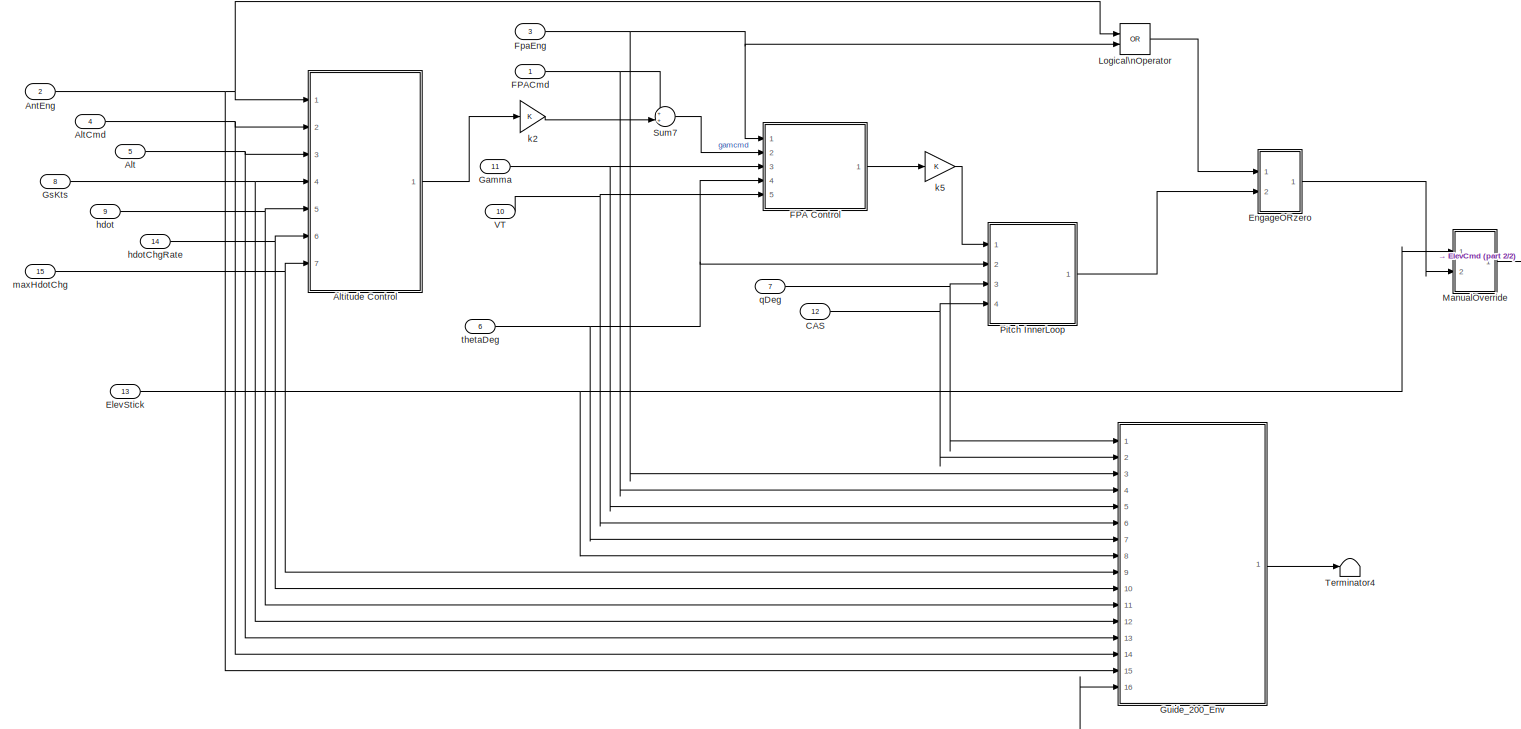
[diagram: root canvas - part 1/2, most of the canvas]
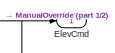
[diagram: root canvas - part 2/2, middle right region]
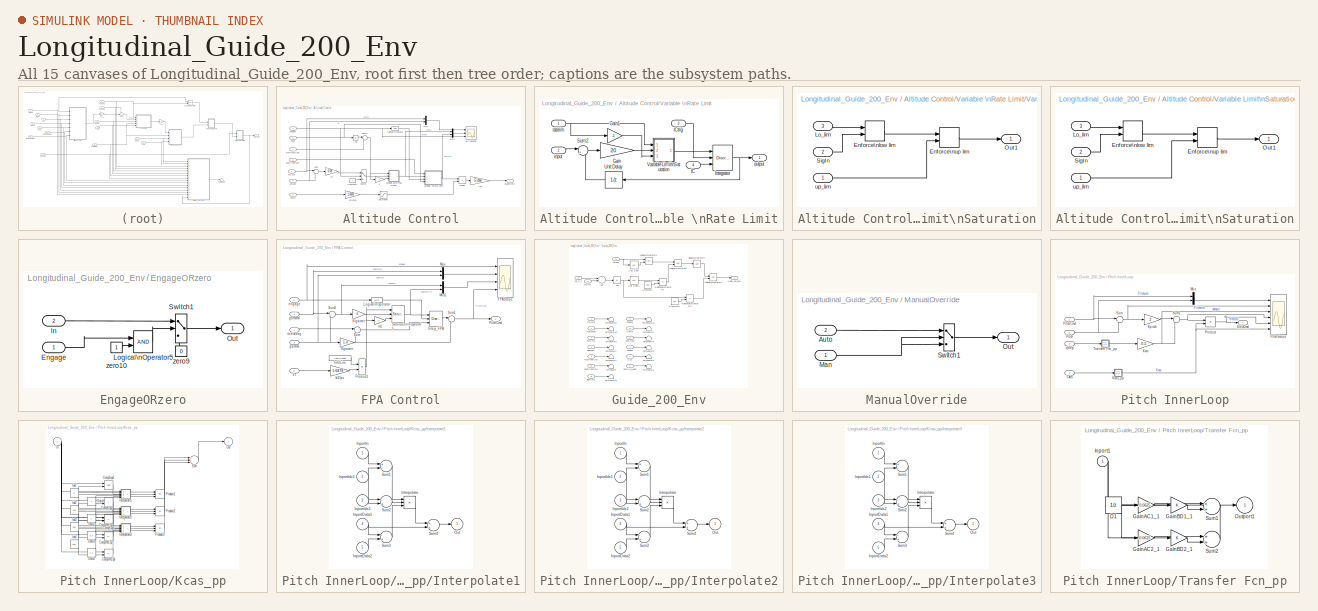
[diagram: thumbnail index - all 15 canvases of the model, root first then tree order]
MODEL Longitudinal_Guide_200_Env
KIND model
BLOCK [Inport] Alt
  IconDisplay = Port number
  OutDataTypeStr = double
  Port = 5
  SID = 5
BLOCK [Inport] AltCmd
  IconDisplay = Port number
  OutDataTypeStr = double
  Port = 4
  SID = 4
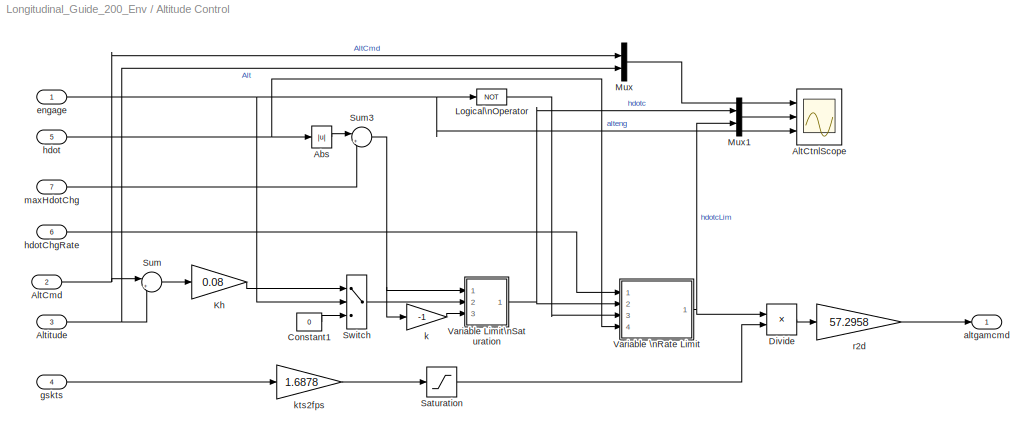
BLOCK [SubSystem] Altitude Control
  Ports = [7, 1]
  RequestExecContextInheritance = off
  SID = 16
  TreatAsAtomicUnit = on
  Variant = off
BLOCK [Abs] Altitude Control/Abs
  SID = 24
BLOCK [Inport] Altitude Control/AltCmd
  IconDisplay = Port number
  Port = 2
  SID = 18
BLOCK [Scope] Altitude Control/AltCtnlScope
  NumInputPorts = 3
  Ports = [3]
  SID = 25
  ScopeSpecificationString = C++SS(StrPVP('Location','[888, 71, 1614, 502]'),StrPVP('Open','off'),MxPVP('AxesTitles',24,'struct(''axes1'',''AltCmd,  Altitude'',''axes2'',''hdotc,  hdotcLim'',''axes3'',''%<SignalLabel>'')'),StrPVP('ShowLegends','off'),StrPVP('TimeRange','30'),StrPVP('YMin','10000~-5~0'),StrPVP('YMax','10200~15~1'),StrPVP('SaveName','ScopeData3'),StrPVP('DataFormat','StructureWithTime'),StrPVP('LimitDataPoints'...<+133ch>
BLOCK [Inport] Altitude Control/Altitude
  IconDisplay = Port number
  Port = 3
  SID = 19
BLOCK [Constant] Altitude Control/Constant1
  SID = 26
  Value = 0
BLOCK [Product] Altitude Control/Divide
  InputSameDT = off
  Inputs = */
  OutDataTypeStr = Inherit: Inherit via internal rule
  Ports = [2, 1]
  RndMeth = Floor
  SID = 27
  SaturateOnIntegerOverflow = off
BLOCK [Gain] Altitude Control/Kh
  Gain = 0.08
  OutDataTypeStr = Inherit: Inherit via internal rule
  ParamDataTypeStr = Inherit: Inherit via internal rule
  SID = 28
  SaturateOnIntegerOverflow = off
BLOCK [Logic] Altitude Control/Logical\nOperator
  Operator = NOT
  Ports = [1, 1]
  SID = 29
BLOCK [Mux] Altitude Control/Mux
  DisplayOption = bar
  Inputs = 2
  Ports = [2, 1]
  SID = 30
BLOCK [Mux] Altitude Control/Mux1
  DisplayOption = bar
  Inputs = 2
  Ports = [2, 1]
  SID = 31
BLOCK [Saturate] Altitude Control/Saturation
  InputPortMap = u0
  LowerLimit = 0.0001
  Ports = [1, 1]
  SID = 32
  UpperLimit = 1000
BLOCK [Sum] Altitude Control/Sum
  IconShape = round
  InputSameDT = off
  Inputs = |+-
  OutDataTypeStr = Inherit: Inherit via internal rule
  Ports = [2, 1]
  SID = 33
  SaturateOnIntegerOverflow = off
BLOCK [Sum] Altitude Control/Sum3
  IconShape = round
  Inputs = |++
  Ports = [2, 1]
  SID = 34
BLOCK [Switch] Altitude Control/Switch
  InputSameDT = off
  SID = 35
  SaturateOnIntegerOverflow = off
BLOCK [SubSystem] Altitude Control/Variable Limit\nSaturation
  Ports = [3, 1]
  RequestExecContextInheritance = off
  SID = 53
  TreatAsAtomicUnit = on
  Variant = off
BLOCK [MinMax] Altitude Control/Variable Limit\nSaturation/Enforce\nlow lim
  Function = max
  InputSameDT = off
  Inputs = 2
  Ports = [2, 1]
  SID = 57
  SaturateOnIntegerOverflow = off
BLOCK [MinMax] Altitude Control/Variable Limit\nSaturation/Enforce\nup lim
  InputSameDT = off
  Inputs = 2
  Ports = [2, 1]
  SID = 58
  SaturateOnIntegerOverflow = off
BLOCK [Inport] Altitude Control/Variable Limit\nSaturation/Lo_lim
  IconDisplay = Port number
  Port = 3
  SID = 56
BLOCK [Outport] Altitude Control/Variable Limit\nSaturation/Out1
  IconDisplay = Port number
  SID = 59
BLOCK [Inport] Altitude Control/Variable Limit\nSaturation/SigIn
  IconDisplay = Port number
  Port = 2
  SID = 55
BLOCK [Inport] Altitude Control/Variable Limit\nSaturation/up_lim
  IconDisplay = Port number
  SID = 54
BLOCK [SubSystem] Altitude Control/Variable \nRate Limit
  Ports = [4, 1]
  RequestExecContextInheritance = off
  SID = 36
  TreatAsAtomicUnit = on
  Variant = off
BLOCK [Gain] Altitude Control/Variable \nRate Limit/Gain
  Gain = 20
  SID = 41
BLOCK [Gain] Altitude Control/Variable \nRate Limit/Gain1
  Gain = -1
  SID = 42
BLOCK [Inport] Altitude Control/Variable \nRate Limit/IC
  IconDisplay = Port number
  Port = 4
  SID = 40
BLOCK [Inport] Altitude Control/Variable \nRate Limit/ICtrig
  IconDisplay = Port number
  Port = 3
  SID = 39
BLOCK [DiscreteIntegrator] Altitude Control/Variable \nRate Limit/Integrator
  ExternalReset = level
  ICPrevOutput = DiscIntNeverNeededParam
  ICPrevScaledInput = DiscIntNeverNeededParam
  InitialConditionSource = external
  Ports = [3, 1]
  SID = 43
  SampleTime = 1.0
BLOCK [Sum] Altitude Control/Variable \nRate Limit/Sum2
  IconShape = round
  InputSameDT = off
  Inputs = |+-
  OutDataTypeStr = Inherit: Inherit via internal rule
  Ports = [2, 1]
  SID = 44
BLOCK [UnitDelay] Altitude Control/Variable \nRate Limit/Unit Delay
  InputProcessing = Elements as channels (sample based)
  SID = 303
  SampleTime = -1
BLOCK [SubSystem] Altitude Control/Variable \nRate Limit/Variable Limit\nSaturation
  Ports = [3, 1]
  RequestExecContextInheritance = off
  SID = 45
  Variant = off
BLOCK [MinMax] Altitude Control/Variable \nRate Limit/Variable Limit\nSaturation/Enforce\nlow lim
  Function = max
  InputSameDT = off
  Inputs = 2
  Ports = [2, 1]
  SID = 49
  SaturateOnIntegerOverflow = off
BLOCK [MinMax] Altitude Control/Variable \nRate Limit/Variable Limit\nSaturation/Enforce\nup lim
  InputSameDT = off
  Inputs = 2
  Ports = [2, 1]
  SID = 50
  SaturateOnIntegerOverflow = off
BLOCK [Inport] Altitude Control/Variable \nRate Limit/Variable Limit\nSaturation/Lo_lim
  IconDisplay = Port number
  Port = 3
  SID = 48
BLOCK [Outport] Altitude Control/Variable \nRate Limit/Variable Limit\nSaturation/Out1
  IconDisplay = Port number
  SID = 51
BLOCK [Inport] Altitude Control/Variable \nRate Limit/Variable Limit\nSaturation/SigIn
  IconDisplay = Port number
  Port = 2
  SID = 47
BLOCK [Inport] Altitude Control/Variable \nRate Limit/Variable Limit\nSaturation/up_lim
  IconDisplay = Port number
  SID = 46
BLOCK [Inport] Altitude Control/Variable \nRate Limit/input
  IconDisplay = Port number
  Port = 2
  SID = 38
BLOCK [Outport] Altitude Control/Variable \nRate Limit/output
  IconDisplay = Port number
  SID = 52
BLOCK [Inport] Altitude Control/Variable \nRate Limit/ratelim
  IconDisplay = Port number
  SID = 37
BLOCK [Outport] Altitude Control/altgamcmd
  IconDisplay = Port number
  SID = 63
BLOCK [Inport] Altitude Control/engage
  IconDisplay = Port number
  SID = 17
BLOCK [Inport] Altitude Control/gskts
  IconDisplay = Port number
  Port = 4
  SID = 20
BLOCK [Inport] Altitude Control/hdot
  IconDisplay = Port number
  Port = 5
  SID = 21
BLOCK [Inport] Altitude Control/hdotChgRate
  IconDisplay = Port number
  Port = 6
  SID = 22
BLOCK [Gain] Altitude Control/k
  Gain = -1
  OutDataTypeStr = Inherit: Inherit via internal rule
  ParamDataTypeStr = Inherit: Inherit via internal rule
  SID = 60
  SaturateOnIntegerOverflow = off
BLOCK [Gain] Altitude Control/kts2fps
  Gain = 1.6878
  OutDataTypeStr = Inherit: Inherit via internal rule
  ParamDataTypeStr = Inherit: Inherit via internal rule
  SID = 61
  SaturateOnIntegerOverflow = off
BLOCK [Inport] Altitude Control/maxHdotChg
  IconDisplay = Port number
  Port = 7
  SID = 23
BLOCK [Gain] Altitude Control/r2d
  Gain = 57.2958
  OutDataTypeStr = Inherit: Inherit via internal rule
  ParamDataTypeStr = Inherit: Inherit via internal rule
  SID = 62
  SaturateOnIntegerOverflow = off
BLOCK [Inport] AntEng
  IconDisplay = Port number
  OutDataTypeStr = boolean
  Port = 2
  SID = 2
BLOCK [Inport] CAS
  IconDisplay = Port number
  OutDataTypeStr = double
  Port = 12
  SID = 12
BLOCK [Outport] ElevCmd
  IconDisplay = Port number
  SID = 222
BLOCK [Inport] ElevStick
  IconDisplay = Port number
  OutDataTypeStr = double
  Port = 13
  SID = 13
BLOCK [SubSystem] EngageORzero
  Ports = [2, 1]
  RequestExecContextInheritance = off
  SID = 64
  Variant = off
BLOCK [Inport] EngageORzero/Engage
  IconDisplay = Port number
  SID = 65
BLOCK [Inport] EngageORzero/In
  IconDisplay = Port number
  Port = 2
  SID = 66
BLOCK [Logic] EngageORzero/Logical\nOperator5
  AllPortsSameDT = off
  OutDataTypeStr = boolean
  Ports = [2, 1]
  SID = 67
BLOCK [Outport] EngageORzero/Out
  IconDisplay = Port number
  SID = 71
BLOCK [Switch] EngageORzero/Switch1
  InputSameDT = off
  SID = 68
  SaturateOnIntegerOverflow = off
  Threshold = 0.5
BLOCK [Constant] EngageORzero/zero10
  SID = 69
BLOCK [Constant] EngageORzero/zero9
  SID = 70
  Value = 0
BLOCK [SubSystem] FPA Control
  Ports = [5, 1]
  RequestExecContextInheritance = off
  SID = 72
  TreatAsAtomicUnit = on
  Variant = off
BLOCK [Scope] FPA Control/FPAScope
  NumInputPorts = 4
  Ports = [4]
  SID = 78
  ScopeSpecificationString = C++SS(StrPVP('Location','[747, 82, 1479, 770]'),StrPVP('Open','off'),MxPVP('AxesTitles',24,'struct(''axes1'',''%<SignalLabel>'',''axes2'',''FPAcmd,  FPA'',''axes3'',''%<SignalLabel>'',''axes4'',''%<SignalLabel>'')'),StrPVP('ShowLegends','off'),StrPVP('YMin','-1~-5~-2~-5'),StrPVP('YMax','2~5~2~10'),StrPVP('SaveName','ScopeData12'),StrPVP('DataFormat','StructureWithTime'),StrPVP('LimitDataPoints','o...<+130ch>
BLOCK [DiscreteIntegrator] FPA Control/Integ_FPA
  ExternalReset = level
  ICPrevOutput = DiscIntNeverNeededParam
  ICPrevScaledInput = DiscIntNeverNeededParam
  InitialConditionSource = external
  Ports = [3, 1]
  SID = 79
  SampleTime = 1.0
BLOCK [Gain] FPA Control/KIgamerr
  OutDataTypeStr = Inherit: Inherit via internal rule
  ParamDataTypeStr = Inherit: Inherit via internal rule
  SID = 80
  SaturateOnIntegerOverflow = off
BLOCK [Gain] FPA Control/Kgamerr
  Gain = 1.4
  OutDataTypeStr = Inherit: Inherit via internal rule
  ParamDataTypeStr = Inherit: Inherit via internal rule
  SID = 81
  SaturateOnIntegerOverflow = off
BLOCK [Logic] FPA Control/Logical\nOperator
  AllPortsSameDT = off
  Operator = NOT
  OutDataTypeStr = boolean
  Ports = [1, 1]
  SID = 82
BLOCK [Mux] FPA Control/Mux
  DisplayOption = bar
  Inputs = 2
  Ports = [2, 1]
  SID = 83
BLOCK [Mux] FPA Control/Mux1
  DisplayOption = bar
  Inputs = 2
  Ports = [2, 1]
  SID = 84
BLOCK [Outport] FPA Control/PitchCmd
  IconDisplay = Port number
  SID = 93
BLOCK [Product] FPA Control/Product1
  InputSameDT = off
  OutDataTypeStr = Inherit: Inherit via internal rule
  Ports = [2, 1]
  SID = 85
  SaturateOnIntegerOverflow = off
BLOCK [Reference] FPA Control/Saturation\nDynamic  REF=simulink/Discontinuities/Saturation\nDynamic
  DoSatur = off
  LockScale = off
  OutDataType = fixdt(1, 16)
  OutDataTypeStr = Inherit: Same as second input
  OutMax = []
  OutMin = []
  OutScaling = 2^-10
  OutputDataTypeScalingMode = Same as second input
  Ports = [3, 1]
  RndMeth = Floor
  SID = 86
  SourceBlock = simulink/Discontinuities/Saturation\nDynamic
  SourceType = Saturation Dynamic
BLOCK [Sum] FPA Control/Sum
  IconShape = round
  InputSameDT = off
  Inputs = |++
  OutDataTypeStr = Inherit: Inherit via internal rule
  Ports = [2, 1]
  SID = 87
  SaturateOnIntegerOverflow = off
BLOCK [Sum] FPA Control/Sum1
  IconShape = round
  InputSameDT = off
  Inputs = |+-
  OutDataTypeStr = Inherit: Inherit via internal rule
  Ports = [2, 1]
  SID = 88
  SaturateOnIntegerOverflow = off
BLOCK [Sum] FPA Control/Sum2
  IconShape = round
  InputSameDT = off
  Inputs = |+-
  OutDataTypeStr = Inherit: Inherit via internal rule
  Ports = [2, 1]
  SID = 89
  SaturateOnIntegerOverflow = off
BLOCK [Inport] FPA Control/VT
  IconDisplay = Port number
  Port = 5
  SID = 77
BLOCK [Inport] FPA Control/engage
  IconDisplay = Port number
  SID = 73
BLOCK [Inport] FPA Control/gamcmd
  IconDisplay = Port number
  Port = 2
  SID = 74
BLOCK [Inport] FPA Control/gamma
  IconDisplay = Port number
  Port = 3
  SID = 75
BLOCK [Constant] FPA Control/hddLim
  SID = 90
  Value = 4.83*57.2958
BLOCK [Gain] FPA Control/kt2fps
  Gain = 1.6878
  OutDataTypeStr = Inherit: Inherit via internal rule
  ParamDataTypeStr = Inherit: Inherit via internal rule
  SID = 91
  SaturateOnIntegerOverflow = off
BLOCK [Gain] FPA Control/m1
  Gain = -1
  OutDataTypeStr = Inherit: Inherit via internal rule
  ParamDataTypeStr = Inherit: Inherit via internal rule
  SID = 92
  SaturateOnIntegerOverflow = off
BLOCK [Inport] FPA Control/thetadeg
  IconDisplay = Port number
  Port = 4
  SID = 76
BLOCK [Inport] FPACmd
  IconDisplay = Port number
  OutDataTypeStr = double
  SID = 1
BLOCK [Inport] FpaEng
  IconDisplay = Port number
  OutDataTypeStr = boolean
  Port = 3
  SID = 3
BLOCK [Inport] Gamma
  IconDisplay = Port number
  OutDataTypeStr = double
  Port = 11
  SID = 11
BLOCK [Inport] GsKts
  IconDisplay = Port number
  OutDataTypeStr = double
  Port = 8
  SID = 8
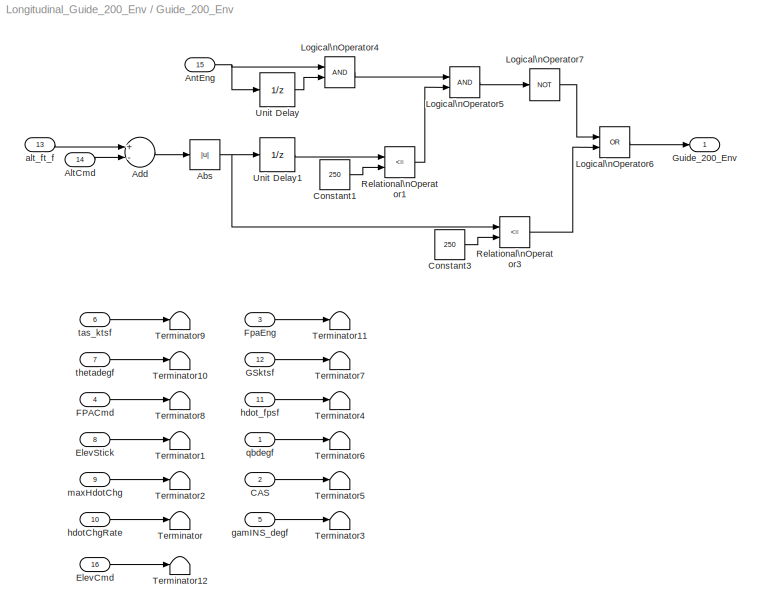
BLOCK [SubSystem] Guide_200_Env
  Ports = [16, 1]
  RequestExecContextInheritance = off
  SID = 260
  TreatAsAtomicUnit = on
  Variant = off
BLOCK [Abs] Guide_200_Env/Abs
  SID = 277
  SaturateOnIntegerOverflow = off
BLOCK [Sum] Guide_200_Env/Add
  InputSameDT = off
  Inputs = +-
  OutDataTypeStr = Inherit: Inherit via internal rule
  Ports = [2, 1]
  SID = 278
  SaturateOnIntegerOverflow = off
BLOCK [Inport] Guide_200_Env/AltCmd
  IconDisplay = Port number
  Port = 14
  SID = 274
BLOCK [Inport] Guide_200_Env/AntEng
  IconDisplay = Port number
  Port = 15
  SID = 275
BLOCK [Inport] Guide_200_Env/CAS
  IconDisplay = Port number
  Port = 2
  SID = 262
BLOCK [Constant] Guide_200_Env/Constant1
  SID = 279
  Value = 250
BLOCK [Constant] Guide_200_Env/Constant3
  SID = 280
  Value = 250
BLOCK [Inport] Guide_200_Env/ElevCmd
  IconDisplay = Port number
  Port = 16
  SID = 276
BLOCK [Inport] Guide_200_Env/ElevStick
  IconDisplay = Port number
  Port = 8
  SID = 268
BLOCK [Inport] Guide_200_Env/FPACmd
  IconDisplay = Port number
  Port = 4
  SID = 264
BLOCK [Inport] Guide_200_Env/FpaEng
  IconDisplay = Port number
  Port = 3
  SID = 263
BLOCK [Inport] Guide_200_Env/GSktsf
  IconDisplay = Port number
  Port = 12
  SID = 272
BLOCK [Outport] Guide_200_Env/Guide_200_Env
  IconDisplay = Port number
  SID = 302
BLOCK [Logic] Guide_200_Env/Logical\nOperator4
  AllPortsSameDT = off
  OutDataTypeStr = boolean
  Ports = [2, 1]
  SID = 281
BLOCK [Logic] Guide_200_Env/Logical\nOperator5
  AllPortsSameDT = off
  OutDataTypeStr = boolean
  Ports = [2, 1]
  SID = 282
BLOCK [Logic] Guide_200_Env/Logical\nOperator6
  AllPortsSameDT = off
  Operator = OR
  OutDataTypeStr = boolean
  Ports = [2, 1]
  SID = 283
BLOCK [Logic] Guide_200_Env/Logical\nOperator7
  AllPortsSameDT = off
  Operator = NOT
  OutDataTypeStr = boolean
  Ports = [1, 1]
  SID = 284
BLOCK [RelationalOperator] Guide_200_Env/Relational\nOperator1
  InputSameDT = off
  Operator = <=
  OutDataTypeStr = boolean
  Ports = [2, 1]
  SID = 285
BLOCK [RelationalOperator] Guide_200_Env/Relational\nOperator3
  InputSameDT = off
  Operator = <=
  OutDataTypeStr = boolean
  Ports = [2, 1]
  SID = 286
BLOCK [Terminator] Guide_200_Env/Terminator
  SID = 287
BLOCK [Terminator] Guide_200_Env/Terminator1
  SID = 288
BLOCK [Terminator] Guide_200_Env/Terminator10
  SID = 289
BLOCK [Terminator] Guide_200_Env/Terminator11
  SID = 290
BLOCK [Terminator] Guide_200_Env/Terminator12
  SID = 291
BLOCK [Terminator] Guide_200_Env/Terminator2
  SID = 292
BLOCK [Terminator] Guide_200_Env/Terminator3
  SID = 293
BLOCK [Terminator] Guide_200_Env/Terminator4
  SID = 294
BLOCK [Terminator] Guide_200_Env/Terminator5
  SID = 295
BLOCK [Terminator] Guide_200_Env/Terminator6
  SID = 296
BLOCK [Terminator] Guide_200_Env/Terminator7
  SID = 297
BLOCK [Terminator] Guide_200_Env/Terminator8
  SID = 298
BLOCK [Terminator] Guide_200_Env/Terminator9
  SID = 299
BLOCK [UnitDelay] Guide_200_Env/Unit Delay
  InputProcessing = Elements as channels (sample based)
  SID = 300
  SampleTime = -1
BLOCK [UnitDelay] Guide_200_Env/Unit Delay1
  InputProcessing = Elements as channels (sample based)
  SID = 301
  SampleTime = -1
BLOCK [Inport] Guide_200_Env/alt_ft_f
  IconDisplay = Port number
  Port = 13
  SID = 273
BLOCK [Inport] Guide_200_Env/gamINS_degf
  IconDisplay = Port number
  Port = 5
  SID = 265
BLOCK [Inport] Guide_200_Env/hdotChgRate
  IconDisplay = Port number
  Port = 10
  SID = 270
BLOCK [Inport] Guide_200_Env/hdot_fpsf
  IconDisplay = Port number
  Port = 11
  SID = 271
BLOCK [Inport] Guide_200_Env/maxHdotChg
  IconDisplay = Port number
  Port = 9
  SID = 269
BLOCK [Inport] Guide_200_Env/qbdegf
  IconDisplay = Port number
  SID = 261
BLOCK [Inport] Guide_200_Env/tas_ktsf
  IconDisplay = Port number
  Port = 6
  SID = 266
BLOCK [Inport] Guide_200_Env/thetadegf
  IconDisplay = Port number
  Port = 7
  SID = 267
BLOCK [Logic] Logical\nOperator
  AllPortsSameDT = off
  Operator = OR
  OutDataTypeStr = boolean
  Ports = [2, 1]
  SID = 132
BLOCK [SubSystem] ManualOverride
  Ports = [2, 1]
  RequestExecContextInheritance = off
  SID = 133
  Variant = off
BLOCK [Inport] ManualOverride/Auto
  IconDisplay = Port number
  Port = 2
  SID = 135
BLOCK [Inport] ManualOverride/Man
  IconDisplay = Port number
  SID = 134
BLOCK [Outport] ManualOverride/Out
  IconDisplay = Port number
  SID = 137
BLOCK [Switch] ManualOverride/Switch1
  Criteria = u2 ~= 0
  InputSameDT = off
  SID = 136
  SaturateOnIntegerOverflow = off
  Threshold = 0.5
BLOCK [SubSystem] Pitch InnerLoop
  Ports = [4, 1]
  RequestExecContextInheritance = off
  SID = 138
  TreatAsAtomicUnit = on
  Variant = off
BLOCK [Inport] Pitch InnerLoop/CAS
  IconDisplay = Port number
  Port = 4
  SID = 142
BLOCK [Outport] Pitch InnerLoop/ElevCmd
  IconDisplay = Port number
  SID = 217
BLOCK [SubSystem] Pitch InnerLoop/Kcas_pp
  Ports = [1, 1]
  RequestExecContextInheritance = off
  SID = 143
  TreatAsAtomicUnit = on
  Variant = off
BLOCK [RelationalOperator] Pitch InnerLoop/Kcas_pp/CompInfEq2
  Operator = <=
  Ports = [2, 1]
  SID = 145
BLOCK [RelationalOperator] Pitch InnerLoop/Kcas_pp/CompInfEq3
  Operator = <=
  Ports = [2, 1]
  SID = 146
BLOCK [RelationalOperator] Pitch InnerLoop/Kcas_pp/CompInfEq4
  Operator = <=
  Ports = [2, 1]
  SID = 147
BLOCK [RelationalOperator] Pitch InnerLoop/Kcas_pp/CompSup1
  Ports = [2, 1]
  SID = 148
BLOCK [RelationalOperator] Pitch InnerLoop/Kcas_pp/CompSup2
  Operator = >
  Ports = [2, 1]
  SID = 149
BLOCK [RelationalOperator] Pitch InnerLoop/Kcas_pp/CompSup3
  Operator = >
  Ports = [2, 1]
  SID = 150
BLOCK [Constant] Pitch InnerLoop/Kcas_pp/Data1
  SID = 151
BLOCK [Constant] Pitch InnerLoop/Kcas_pp/Data2
  SID = 152
BLOCK [Constant] Pitch InnerLoop/Kcas_pp/Data3
  SID = 153
  Value = 0.3
BLOCK [Constant] Pitch InnerLoop/Kcas_pp/Data4
  SID = 154
  Value = 0.3
BLOCK [Constant] Pitch InnerLoop/Kcas_pp/Idx1
  SID = 155
  Value = 0
BLOCK [Constant] Pitch InnerLoop/Kcas_pp/Idx2
  SID = 156
  Value = 120
BLOCK [Constant] Pitch InnerLoop/Kcas_pp/Idx3
  SID = 157
  Value = 350
BLOCK [Constant] Pitch InnerLoop/Kcas_pp/Idx4
  SID = 158
  Value = 500
BLOCK [Inport] Pitch InnerLoop/Kcas_pp/In
  IconDisplay = Port number
  SID = 144
BLOCK [SubSystem] Pitch InnerLoop/Kcas_pp/Interpolate1
  Ports = [5, 1]
  RequestExecContextInheritance = off
  SID = 159
  Variant = off
BLOCK [Inport] Pitch InnerLoop/Kcas_pp/Interpolate1/InportData1
  IconDisplay = Port number
  Port = 4
  SID = 163
BLOCK [Inport] Pitch InnerLoop/Kcas_pp/Interpolate1/InportData2
  IconDisplay = Port number
  Port = 5
  SID = 164
BLOCK [Inport] Pitch InnerLoop/Kcas_pp/Interpolate1/InportIdx1
  IconDisplay = Port number
  Port = 2
  SID = 161
BLOCK [Inport] Pitch InnerLoop/Kcas_pp/Interpolate1/InportIdx2
  IconDisplay = Port number
  Port = 3
  SID = 162
BLOCK [Inport] Pitch InnerLoop/Kcas_pp/Interpolate1/InportIn
  IconDisplay = Port number
  SID = 160
BLOCK [Product] Pitch InnerLoop/Kcas_pp/Interpolate1/Interpolate
  Inputs = */*
  Ports = [3, 1]
  SID = 165
BLOCK [Outport] Pitch InnerLoop/Kcas_pp/Interpolate1/Out
  IconDisplay = Port number
  SID = 170
BLOCK [Sum] Pitch InnerLoop/Kcas_pp/Interpolate1/Sum1
  Inputs = +-
  Ports = [2, 1]
  SID = 166
BLOCK [Sum] Pitch InnerLoop/Kcas_pp/Interpolate1/Sum2
  Inputs = -+
  Ports = [2, 1]
  SID = 167
BLOCK [Sum] Pitch InnerLoop/Kcas_pp/Interpolate1/Sum3
  Inputs = -+
  Ports = [2, 1]
  SID = 168
BLOCK [Sum] Pitch InnerLoop/Kcas_pp/Interpolate1/Sum4
  Ports = [2, 1]
  SID = 169
BLOCK [SubSystem] Pitch InnerLoop/Kcas_pp/Interpolate2
  Ports = [5, 1]
  RequestExecContextInheritance = off
  SID = 171
  Variant = off
BLOCK [Inport] Pitch InnerLoop/Kcas_pp/Interpolate2/InportData1
  IconDisplay = Port number
  Port = 4
  SID = 175
BLOCK [Inport] Pitch InnerLoop/Kcas_pp/Interpolate2/InportData2
  IconDisplay = Port number
  Port = 5
  SID = 176
BLOCK [Inport] Pitch InnerLoop/Kcas_pp/Interpolate2/InportIdx1
  IconDisplay = Port number
  Port = 2
  SID = 173
BLOCK [Inport] Pitch InnerLoop/Kcas_pp/Interpolate2/InportIdx2
  IconDisplay = Port number
  Port = 3
  SID = 174
BLOCK [Inport] Pitch InnerLoop/Kcas_pp/Interpolate2/InportIn
  IconDisplay = Port number
  SID = 172
BLOCK [Product] Pitch InnerLoop/Kcas_pp/Interpolate2/Interpolate
  Inputs = */*
  Ports = [3, 1]
  SID = 177
BLOCK [Outport] Pitch InnerLoop/Kcas_pp/Interpolate2/Out
  IconDisplay = Port number
  SID = 182
BLOCK [Sum] Pitch InnerLoop/Kcas_pp/Interpolate2/Sum1
  Inputs = +-
  Ports = [2, 1]
  SID = 178
BLOCK [Sum] Pitch InnerLoop/Kcas_pp/Interpolate2/Sum2
  Inputs = -+
  Ports = [2, 1]
  SID = 179
BLOCK [Sum] Pitch InnerLoop/Kcas_pp/Interpolate2/Sum3
  Inputs = -+
  Ports = [2, 1]
  SID = 180
BLOCK [Sum] Pitch InnerLoop/Kcas_pp/Interpolate2/Sum4
  Ports = [2, 1]
  SID = 181
BLOCK [SubSystem] Pitch InnerLoop/Kcas_pp/Interpolate3
  Ports = [5, 1]
  RequestExecContextInheritance = off
  SID = 183
  Variant = off
BLOCK [Inport] Pitch InnerLoop/Kcas_pp/Interpolate3/InportData1
  IconDisplay = Port number
  Port = 4
  SID = 187
BLOCK [Inport] Pitch InnerLoop/Kcas_pp/Interpolate3/InportData2
  IconDisplay = Port number
  Port = 5
  SID = 188
BLOCK [Inport] Pitch InnerLoop/Kcas_pp/Interpolate3/InportIdx1
  IconDisplay = Port number
  Port = 2
  SID = 185
BLOCK [Inport] Pitch InnerLoop/Kcas_pp/Interpolate3/InportIdx2
  IconDisplay = Port number
  Port = 3
  SID = 186
BLOCK [Inport] Pitch InnerLoop/Kcas_pp/Interpolate3/InportIn
  IconDisplay = Port number
  SID = 184
BLOCK [Product] Pitch InnerLoop/Kcas_pp/Interpolate3/Interpolate
  Inputs = */*
  Ports = [3, 1]
  SID = 189
BLOCK [Outport] Pitch InnerLoop/Kcas_pp/Interpolate3/Out
  IconDisplay = Port number
  SID = 194
BLOCK [Sum] Pitch InnerLoop/Kcas_pp/Interpolate3/Sum1
  Inputs = +-
  Ports = [2, 1]
  SID = 190
BLOCK [Sum] Pitch InnerLoop/Kcas_pp/Interpolate3/Sum2
  Inputs = -+
  Ports = [2, 1]
  SID = 191
BLOCK [Sum] Pitch InnerLoop/Kcas_pp/Interpolate3/Sum3
  Inputs = -+
  Ports = [2, 1]
  SID = 192
BLOCK [Sum] Pitch InnerLoop/Kcas_pp/Interpolate3/Sum4
  Ports = [2, 1]
  SID = 193
BLOCK [Outport] Pitch InnerLoop/Kcas_pp/Out
  IconDisplay = Port number
  SID = 199
BLOCK [Product] Pitch InnerLoop/Kcas_pp/Product1
  InputSameDT = off
  Inputs = ***
  Ports = [3, 1]
  SID = 195
BLOCK [Product] Pitch InnerLoop/Kcas_pp/Product2
  InputSameDT = off
  Inputs = ***
  Ports = [3, 1]
  SID = 196
BLOCK [Product] Pitch InnerLoop/Kcas_pp/Product3
  InputSameDT = off
  Inputs = ***
  Ports = [3, 1]
  SID = 197
BLOCK [Sum] Pitch InnerLoop/Kcas_pp/Sum
  Inputs = +++
  Ports = [3, 1]
  SID = 198
BLOCK [Gain] Pitch InnerLoop/Kpitch
  Gain = 2
  OutDataTypeStr = Inherit: Inherit via internal rule
  ParamDataTypeStr = Inherit: Inherit via internal rule
  SID = 200
  SaturateOnIntegerOverflow = off
BLOCK [Gain] Pitch InnerLoop/Kwo
  Gain = 0.5
  OutDataTypeStr = Inherit: Inherit via internal rule
  ParamDataTypeStr = Inherit: Inherit via internal rule
  SID = 201
  SaturateOnIntegerOverflow = off
BLOCK [Mux] Pitch InnerLoop/Mux
  DisplayOption = bar
  Inputs = 2
  Ports = [2, 1]
  SID = 202
BLOCK [Inport] Pitch InnerLoop/Pitch
  IconDisplay = Port number
  Port = 2
  SID = 140
BLOCK [Inport] Pitch InnerLoop/PitchCmd
  IconDisplay = Port number
  SID = 139
BLOCK [Scope] Pitch InnerLoop/PitchScope
  NumInputPorts = 6
  Ports = [6]
  SID = 203
  ScopeSpecificationString = C++SS(StrPVP('Location','[1011, 113, 1817, 1089]'),StrPVP('Open','off'),MxPVP('AxesTitles',24,'struct(''axes1'',''Pitchcmd,  Pitch'',''axes2'',''%<SignalLabel>'',''axes3'',''%<SignalLabel>'',''axes4'',''%<SignalLabel>'',''axes5'',''%<SignalLabel>'',''axes6'',''%<SignalLabel>'')'),StrPVP('ShowLegends','off'),StrPVP('YMin','-2~-2~-2~-20~-20~0'),StrPVP('YMax','10~2~2~20~20~1.2'),StrPVP('SaveName','Sc...<+210ch>
BLOCK [Product] Pitch InnerLoop/Product
  InputSameDT = off
  OutDataTypeStr = Inherit: Inherit via internal rule
  Ports = [2, 1]
  SID = 204
  SaturateOnIntegerOverflow = off
BLOCK [Sum] Pitch InnerLoop/Sum
  IconShape = round
  InputSameDT = off
  Inputs = |+-
  OutDataTypeStr = Inherit: Inherit via internal rule
  Ports = [2, 1]
  SID = 205
  SaturateOnIntegerOverflow = off
BLOCK [Sum] Pitch InnerLoop/Sum1
  IconShape = round
  InputSameDT = off
  Inputs = |-+
  OutDataTypeStr = Inherit: Inherit via internal rule
  Ports = [2, 1]
  SID = 206
  SaturateOnIntegerOverflow = off
BLOCK [SubSystem] Pitch InnerLoop/Transfer Fcn_pp
  Ports = [1, 1]
  RequestExecContextInheritance = off
  SID = 207
  TreatAsAtomicUnit = on
  Variant = off
BLOCK [UnitDelay] Pitch InnerLoop/Transfer Fcn_pp/D1
  SID = 209
  SampleTime = -1
BLOCK [Gain] Pitch InnerLoop/Transfer Fcn_pp/GainAC1_1
  Gain = -0.0625
  SID = 210
BLOCK [Gain] Pitch InnerLoop/Transfer Fcn_pp/GainAC2_1
  Gain = -0.0625
  SID = 211
BLOCK [Gain] Pitch InnerLoop/Transfer Fcn_pp/GainBD1_1
  SID = 212
BLOCK [Gain] Pitch InnerLoop/Transfer Fcn_pp/GainBD2_1
  SID = 213
BLOCK [Inport] Pitch InnerLoop/Transfer Fcn_pp/Inport1
  IconDisplay = Port number
  SID = 208
BLOCK [Outport] Pitch InnerLoop/Transfer Fcn_pp/Outport1
  IconDisplay = Port number
  SID = 216
BLOCK [Sum] Pitch InnerLoop/Transfer Fcn_pp/Sum1
  Ports = [2, 1]
  SID = 214
BLOCK [Sum] Pitch InnerLoop/Transfer Fcn_pp/Sum2
  Ports = [2, 1]
  SID = 215
BLOCK [Inport] Pitch InnerLoop/qdeg
  IconDisplay = Port number
  Port = 3
  SID = 141
BLOCK [Sum] Sum7
  IconShape = round
  InputSameDT = off
  Inputs = ++|
  OutDataTypeStr = Inherit: Inherit via internal rule
  Ports = [2, 1]
  SID = 218
  SaturateOnIntegerOverflow = off
BLOCK [Terminator] Terminator4
  SID = 219
BLOCK [Inport] VT
  IconDisplay = Port number
  OutDataTypeStr = double
  Port = 10
  SID = 10
BLOCK [Inport] hdot
  IconDisplay = Port number
  OutDataTypeStr = double
  Port = 9
  SID = 9
BLOCK [Inport] hdotChgRate
  IconDisplay = Port number
  OutDataTypeStr = double
  Port = 14
  SID = 14
BLOCK [Gain] k2
  OutDataTypeStr = Inherit: Inherit via internal rule
  ParamDataTypeStr = Inherit: Inherit via internal rule
  SID = 220
  SaturateOnIntegerOverflow = off
BLOCK [Gain] k5
  OutDataTypeStr = Inherit: Inherit via internal rule
  ParamDataTypeStr = Inherit: Inherit via internal rule
  SID = 221
  SaturateOnIntegerOverflow = off
BLOCK [Inport] maxHdotChg
  IconDisplay = Port number
  OutDataTypeStr = double
  Port = 15
  SID = 15
BLOCK [Inport] qDeg
  IconDisplay = Port number
  OutDataTypeStr = double
  Port = 7
  SID = 7
BLOCK [Inport] thetaDeg
  IconDisplay = Port number
  OutDataTypeStr = double
  Port = 6
  SID = 6
NET Alt:1 -> Altitude Control:3, Guide_200_Env:13
NET AltCmd:1 -> Altitude Control:2, Guide_200_Env:14
LINE Altitude Control/Abs:1 -> Altitude Control/Sum3:1
NET Altitude Control/AltCmd:1 -> Altitude Control/Mux:1, Altitude Control/Sum:1
NET Altitude Control/Altitude:1 -> Altitude Control/Mux:2, Altitude Control/Sum:2
LINE Altitude Control/Constant1:1 -> Altitude Control/Switch:3
LINE Altitude Control/Divide:1 -> Altitude Control/r2d:1
LINE Altitude Control/Kh:1 -> Altitude Control/Switch:1
LINE Altitude Control/Logical\nOperator:1 -> Altitude Control/Variable \nRate Limit:3
LINE Altitude Control/Mux1:1 -> Altitude Control/AltCtnlScope:2
LINE Altitude Control/Mux:1 -> Altitude Control/AltCtnlScope:1
LINE Altitude Control/Saturation:1 -> Altitude Control/Divide:2
NET Altitude Control/Sum3:1 -> Altitude Control/Variable Limit\nSaturation:1, Altitude Control/k:1
LINE Altitude Control/Sum:1 -> Altitude Control/Kh:1
LINE Altitude Control/Switch:1 -> Altitude Control/Variable Limit\nSaturation:2
LINE Altitude Control/Variable Limit\nSaturation/Enforce\nlow lim:1 -> Altitude Control/Variable Limit\nSaturation/Enforce\nup lim:1
LINE Altitude Control/Variable Limit\nSaturation/Enforce\nup lim:1 -> Altitude Control/Variable Limit\nSaturation/Out1:1
LINE Altitude Control/Variable Limit\nSaturation/Lo_lim:1 -> Altitude Control/Variable Limit\nSaturation/Enforce\nlow lim:1
LINE Altitude Control/Variable Limit\nSaturation/SigIn:1 -> Altitude Control/Variable Limit\nSaturation/Enforce\nlow lim:2
LINE Altitude Control/Variable Limit\nSaturation/up_lim:1 -> Altitude Control/Variable Limit\nSaturation/Enforce\nup lim:2
NET Altitude Control/Variable Limit\nSaturation:1 -> Altitude Control/Mux1:1, Altitude Control/Variable \nRate Limit:2
LINE Altitude Control/Variable \nRate Limit/Gain1:1 -> Altitude Control/Variable \nRate Limit/Variable Limit\nSaturation:3
LINE Altitude Control/Variable \nRate Limit/Gain:1 -> Altitude Control/Variable \nRate Limit/Variable Limit\nSaturation:2
LINE Altitude Control/Variable \nRate Limit/IC:1 -> Altitude Control/Variable \nRate Limit/Integrator:3
LINE Altitude Control/Variable \nRate Limit/ICtrig:1 -> Altitude Control/Variable \nRate Limit/Integrator:2
NET Altitude Control/Variable \nRate Limit/Integrator:1 -> Altitude Control/Variable \nRate Limit/Unit Delay:1, Altitude Control/Variable \nRate Limit/output:1
LINE Altitude Control/Variable \nRate Limit/Sum2:1 -> Altitude Control/Variable \nRate Limit/Gain:1
LINE Altitude Control/Variable \nRate Limit/Unit Delay:1 -> Altitude Control/Variable \nRate Limit/Sum2:2
LINE Altitude Control/Variable \nRate Limit/Variable Limit\nSaturation/Enforce\nlow lim:1 -> Altitude Control/Variable \nRate Limit/Variable Limit\nSaturation/Enforce\nup lim:1
LINE Altitude Control/Variable \nRate Limit/Variable Limit\nSaturation/Enforce\nup lim:1 -> Altitude Control/Variable \nRate Limit/Variable Limit\nSaturation/Out1:1
LINE Altitude Control/Variable \nRate Limit/Variable Limit\nSaturation/Lo_lim:1 -> Altitude Control/Variable \nRate Limit/Variable Limit\nSaturation/Enforce\nlow lim:1
LINE Altitude Control/Variable \nRate Limit/Variable Limit\nSaturation/SigIn:1 -> Altitude Control/Variable \nRate Limit/Variable Limit\nSaturation/Enforce\nlow lim:2
LINE Altitude Control/Variable \nRate Limit/Variable Limit\nSaturation/up_lim:1 -> Altitude Control/Variable \nRate Limit/Variable Limit\nSaturation/Enforce\nup lim:2
LINE Altitude Control/Variable \nRate Limit/Variable Limit\nSaturation:1 -> Altitude Control/Variable \nRate Limit/Integrator:1
LINE Altitude Control/Variable \nRate Limit/input:1 -> Altitude Control/Variable \nRate Limit/Sum2:1
NET Altitude Control/Variable \nRate Limit/ratelim:1 -> Altitude Control/Variable \nRate Limit/Gain1:1, Altitude Control/Variable \nRate Limit/Variable Limit\nSaturation:1
NET Altitude Control/Variable \nRate Limit:1 -> Altitude Control/Divide:1, Altitude Control/Mux1:2
NET Altitude Control/engage:1 -> Altitude Control/AltCtnlScope:3, Altitude Control/Logical\nOperator:1, Altitude Control/Switch:2
LINE Altitude Control/gskts:1 -> Altitude Control/kts2fps:1
NET Altitude Control/hdot:1 -> Altitude Control/Abs:1, Altitude Control/Variable \nRate Limit:4
LINE Altitude Control/hdotChgRate:1 -> Altitude Control/Variable \nRate Limit:1
LINE Altitude Control/k:1 -> Altitude Control/Variable Limit\nSaturation:3
LINE Altitude Control/kts2fps:1 -> Altitude Control/Saturation:1
LINE Altitude Control/maxHdotChg:1 -> Altitude Control/Sum3:2
LINE Altitude Control/r2d:1 -> Altitude Control/altgamcmd:1
LINE Altitude Control:1 -> k2:1
NET AntEng:1 -> Altitude Control:1, Guide_200_Env:15, Logical\nOperator:1
NET CAS:1 -> Guide_200_Env:2, Pitch InnerLoop:4
NET ElevStick:1 -> Guide_200_Env:8, ManualOverride:1
LINE EngageORzero/Engage:1 -> EngageORzero/Logical\nOperator5:1
LINE EngageORzero/In:1 -> EngageORzero/Switch1:1
LINE EngageORzero/Logical\nOperator5:1 -> EngageORzero/Switch1:2
LINE EngageORzero/Switch1:1 -> EngageORzero/Out:1
LINE EngageORzero/zero10:1 -> EngageORzero/Logical\nOperator5:2
LINE EngageORzero/zero9:1 -> EngageORzero/Switch1:3
LINE EngageORzero:1 -> ManualOverride:2
LINE FPA Control/Integ_FPA:1 -> FPA Control/Sum1:1
LINE FPA Control/KIgamerr:1 -> FPA Control/Saturation\nDynamic:2
NET FPA Control/Kgamerr:1 -> FPA Control/Sum1:2, FPA Control/Sum:2
LINE FPA Control/Logical\nOperator:1 -> FPA Control/Integ_FPA:2
LINE FPA Control/Mux1:1 -> FPA Control/FPAScope:3
LINE FPA Control/Mux:1 -> FPA Control/FPAScope:2
NET FPA Control/Product1:1 -> FPA Control/Saturation\nDynamic:1, FPA Control/m1:1
NET FPA Control/Saturation\nDynamic:1 -> FPA Control/Integ_FPA:1, FPA Control/Mux1:2
NET FPA Control/Sum1:1 -> FPA Control/FPAScope:4, FPA Control/PitchCmd:1
NET FPA Control/Sum2:1 -> FPA Control/KIgamerr:1, FPA Control/Mux1:1
LINE FPA Control/Sum:1 -> FPA Control/Integ_FPA:3
LINE FPA Control/VT:1 -> FPA Control/kt2fps:1
NET FPA Control/engage:1 -> FPA Control/FPAScope:1, FPA Control/Logical\nOperator:1
NET FPA Control/gamcmd:1 -> FPA Control/Mux:1, FPA Control/Sum2:1
NET FPA Control/gamma:1 -> FPA Control/Kgamerr:1, FPA Control/Mux:2, FPA Control/Sum2:2
LINE FPA Control/hddLim:1 -> FPA Control/Product1:1
LINE FPA Control/kt2fps:1 -> FPA Control/Product1:2
LINE FPA Control/m1:1 -> FPA Control/Saturation\nDynamic:3
LINE FPA Control/thetadeg:1 -> FPA Control/Sum:1
LINE FPA Control:1 -> k5:1
NET FPACmd:1 -> Guide_200_Env:4, Sum7:1
NET FpaEng:1 -> FPA Control:1, Guide_200_Env:3, Logical\nOperator:2
NET Gamma:1 -> FPA Control:3, Guide_200_Env:5
NET GsKts:1 -> Altitude Control:4, Guide_200_Env:12
NET Guide_200_Env/Abs:1 -> Guide_200_Env/Relational\nOperator3:1, Guide_200_Env/Unit Delay1:1
LINE Guide_200_Env/Add:1 -> Guide_200_Env/Abs:1
LINE Guide_200_Env/AltCmd:1 -> Guide_200_Env/Add:2
NET Guide_200_Env/AntEng:1 -> Guide_200_Env/Logical\nOperator4:1, Guide_200_Env/Unit Delay:1
LINE Guide_200_Env/CAS:1 -> Guide_200_Env/Terminator5:1
LINE Guide_200_Env/Constant1:1 -> Guide_200_Env/Relational\nOperator1:2
LINE Guide_200_Env/Constant3:1 -> Guide_200_Env/Relational\nOperator3:2
LINE Guide_200_Env/ElevCmd:1 -> Guide_200_Env/Terminator12:1
LINE Guide_200_Env/ElevStick:1 -> Guide_200_Env/Terminator1:1
LINE Guide_200_Env/FPACmd:1 -> Guide_200_Env/Terminator8:1
LINE Guide_200_Env/FpaEng:1 -> Guide_200_Env/Terminator11:1
LINE Guide_200_Env/GSktsf:1 -> Guide_200_Env/Terminator7:1
LINE Guide_200_Env/Logical\nOperator4:1 -> Guide_200_Env/Logical\nOperator5:1
LINE Guide_200_Env/Logical\nOperator5:1 -> Guide_200_Env/Logical\nOperator7:1
LINE Guide_200_Env/Logical\nOperator6:1 -> Guide_200_Env/Guide_200_Env:1
LINE Guide_200_Env/Logical\nOperator7:1 -> Guide_200_Env/Logical\nOperator6:1
LINE Guide_200_Env/Relational\nOperator1:1 -> Guide_200_Env/Logical\nOperator5:2
LINE Guide_200_Env/Relational\nOperator3:1 -> Guide_200_Env/Logical\nOperator6:2
LINE Guide_200_Env/Unit Delay1:1 -> Guide_200_Env/Relational\nOperator1:1
LINE Guide_200_Env/Unit Delay:1 -> Guide_200_Env/Logical\nOperator4:2
LINE Guide_200_Env/alt_ft_f:1 -> Guide_200_Env/Add:1
LINE Guide_200_Env/gamINS_degf:1 -> Guide_200_Env/Terminator3:1
LINE Guide_200_Env/hdotChgRate:1 -> Guide_200_Env/Terminator:1
LINE Guide_200_Env/hdot_fpsf:1 -> Guide_200_Env/Terminator4:1
LINE Guide_200_Env/maxHdotChg:1 -> Guide_200_Env/Terminator2:1
LINE Guide_200_Env/qbdegf:1 -> Guide_200_Env/Terminator6:1
LINE Guide_200_Env/tas_ktsf:1 -> Guide_200_Env/Terminator9:1
LINE Guide_200_Env/thetadegf:1 -> Guide_200_Env/Terminator10:1
LINE Guide_200_Env:1 -> Terminator4:1
LINE Logical\nOperator:1 -> EngageORzero:1
LINE ManualOverride/Auto:1 -> ManualOverride/Switch1:1
NET ManualOverride/Man:1 -> ManualOverride/Switch1:2, ManualOverride/Switch1:3
LINE ManualOverride/Switch1:1 -> ManualOverride/Out:1
NET ManualOverride:1 -> ElevCmd:1, Guide_200_Env:16
LINE Pitch InnerLoop/CAS:1 -> Pitch InnerLoop/Kcas_pp:1
LINE Pitch InnerLoop/Kcas_pp/CompInfEq2:1 -> Pitch InnerLoop/Kcas_pp/Product1:3
LINE Pitch InnerLoop/Kcas_pp/CompInfEq3:1 -> Pitch InnerLoop/Kcas_pp/Product2:3
LINE Pitch InnerLoop/Kcas_pp/CompInfEq4:1 -> Pitch InnerLoop/Kcas_pp/Product3:3
LINE Pitch InnerLoop/Kcas_pp/CompSup1:1 -> Pitch InnerLoop/Kcas_pp/Product1:2
LINE Pitch InnerLoop/Kcas_pp/CompSup2:1 -> Pitch InnerLoop/Kcas_pp/Product2:2
LINE Pitch InnerLoop/Kcas_pp/CompSup3:1 -> Pitch InnerLoop/Kcas_pp/Product3:2
LINE Pitch InnerLoop/Kcas_pp/Data1:1 -> Pitch InnerLoop/Kcas_pp/Interpolate1:4
NET Pitch InnerLoop/Kcas_pp/Data2:1 -> Pitch InnerLoop/Kcas_pp/Interpolate1:5, Pitch InnerLoop/Kcas_pp/Interpolate2:4
NET Pitch InnerLoop/Kcas_pp/Data3:1 -> Pitch InnerLoop/Kcas_pp/Interpolate2:5, Pitch InnerLoop/Kcas_pp/Interpolate3:4
LINE Pitch InnerLoop/Kcas_pp/Data4:1 -> Pitch InnerLoop/Kcas_pp/Interpolate3:5
NET Pitch InnerLoop/Kcas_pp/Idx1:1 -> Pitch InnerLoop/Kcas_pp/CompSup1:2, Pitch InnerLoop/Kcas_pp/Interpolate1:2
NET Pitch InnerLoop/Kcas_pp/Idx2:1 -> Pitch InnerLoop/Kcas_pp/CompInfEq2:2, Pitch InnerLoop/Kcas_pp/CompSup2:2, Pitch InnerLoop/Kcas_pp/Interpolate1:3, Pitch InnerLoop/Kcas_pp/Interpolate2:2
NET Pitch InnerLoop/Kcas_pp/Idx3:1 -> Pitch InnerLoop/Kcas_pp/CompInfEq3:2, Pitch InnerLoop/Kcas_pp/CompSup3:2, Pitch InnerLoop/Kcas_pp/Interpolate2:3, Pitch InnerLoop/Kcas_pp/Interpolate3:2
NET Pitch InnerLoop/Kcas_pp/Idx4:1 -> Pitch InnerLoop/Kcas_pp/CompInfEq4:2, Pitch InnerLoop/Kcas_pp/Interpolate3:3
NET Pitch InnerLoop/Kcas_pp/In:1 -> Pitch InnerLoop/Kcas_pp/CompInfEq2:1, Pitch InnerLoop/Kcas_pp/CompInfEq3:1, Pitch InnerLoop/Kcas_pp/CompInfEq4:1, Pitch InnerLoop/Kcas_pp/CompSup1:1, Pitch InnerLoop/Kcas_pp/CompSup2:1, Pitch InnerLoop/Kcas_pp/CompSup3:1, Pitch InnerLoop/Kcas_pp/Interpolate1:1, Pitch InnerLoop/Kcas_pp/Interpolate2:1, Pitch InnerLoop/Kcas_pp/Interpolate3:1
NET Pitch InnerLoop/Kcas_pp/Interpolate1/InportData1:1 -> Pitch InnerLoop/Kcas_pp/Interpolate1/Sum3:1, Pitch InnerLoop/Kcas_pp/Interpolate1/Sum4:2
LINE Pitch InnerLoop/Kcas_pp/Interpolate1/InportData2:1 -> Pitch InnerLoop/Kcas_pp/Interpolate1/Sum3:2
NET Pitch InnerLoop/Kcas_pp/Interpolate1/InportIdx1:1 -> Pitch InnerLoop/Kcas_pp/Interpolate1/Sum1:2, Pitch InnerLoop/Kcas_pp/Interpolate1/Sum2:1
LINE Pitch InnerLoop/Kcas_pp/Interpolate1/InportIdx2:1 -> Pitch InnerLoop/Kcas_pp/Interpolate1/Sum2:2
LINE Pitch InnerLoop/Kcas_pp/Interpolate1/InportIn:1 -> Pitch InnerLoop/Kcas_pp/Interpolate1/Sum1:1
LINE Pitch InnerLoop/Kcas_pp/Interpolate1/Interpolate:1 -> Pitch InnerLoop/Kcas_pp/Interpolate1/Sum4:1
LINE Pitch InnerLoop/Kcas_pp/Interpolate1/Sum1:1 -> Pitch InnerLoop/Kcas_pp/Interpolate1/Interpolate:1
LINE Pitch InnerLoop/Kcas_pp/Interpolate1/Sum2:1 -> Pitch InnerLoop/Kcas_pp/Interpolate1/Interpolate:2
LINE Pitch InnerLoop/Kcas_pp/Interpolate1/Sum3:1 -> Pitch InnerLoop/Kcas_pp/Interpolate1/Interpolate:3
LINE Pitch InnerLoop/Kcas_pp/Interpolate1/Sum4:1 -> Pitch InnerLoop/Kcas_pp/Interpolate1/Out:1
LINE Pitch InnerLoop/Kcas_pp/Interpolate1:1 -> Pitch InnerLoop/Kcas_pp/Product1:1
NET Pitch InnerLoop/Kcas_pp/Interpolate2/InportData1:1 -> Pitch InnerLoop/Kcas_pp/Interpolate2/Sum3:1, Pitch InnerLoop/Kcas_pp/Interpolate2/Sum4:2
LINE Pitch InnerLoop/Kcas_pp/Interpolate2/InportData2:1 -> Pitch InnerLoop/Kcas_pp/Interpolate2/Sum3:2
NET Pitch InnerLoop/Kcas_pp/Interpolate2/InportIdx1:1 -> Pitch InnerLoop/Kcas_pp/Interpolate2/Sum1:2, Pitch InnerLoop/Kcas_pp/Interpolate2/Sum2:1
LINE Pitch InnerLoop/Kcas_pp/Interpolate2/InportIdx2:1 -> Pitch InnerLoop/Kcas_pp/Interpolate2/Sum2:2
LINE Pitch InnerLoop/Kcas_pp/Interpolate2/InportIn:1 -> Pitch InnerLoop/Kcas_pp/Interpolate2/Sum1:1
LINE Pitch InnerLoop/Kcas_pp/Interpolate2/Interpolate:1 -> Pitch InnerLoop/Kcas_pp/Interpolate2/Sum4:1
LINE Pitch InnerLoop/Kcas_pp/Interpolate2/Sum1:1 -> Pitch InnerLoop/Kcas_pp/Interpolate2/Interpolate:1
LINE Pitch InnerLoop/Kcas_pp/Interpolate2/Sum2:1 -> Pitch InnerLoop/Kcas_pp/Interpolate2/Interpolate:2
LINE Pitch InnerLoop/Kcas_pp/Interpolate2/Sum3:1 -> Pitch InnerLoop/Kcas_pp/Interpolate2/Interpolate:3
LINE Pitch InnerLoop/Kcas_pp/Interpolate2/Sum4:1 -> Pitch InnerLoop/Kcas_pp/Interpolate2/Out:1
LINE Pitch InnerLoop/Kcas_pp/Interpolate2:1 -> Pitch InnerLoop/Kcas_pp/Product2:1
NET Pitch InnerLoop/Kcas_pp/Interpolate3/InportData1:1 -> Pitch InnerLoop/Kcas_pp/Interpolate3/Sum3:1, Pitch InnerLoop/Kcas_pp/Interpolate3/Sum4:2
LINE Pitch InnerLoop/Kcas_pp/Interpolate3/InportData2:1 -> Pitch InnerLoop/Kcas_pp/Interpolate3/Sum3:2
NET Pitch InnerLoop/Kcas_pp/Interpolate3/InportIdx1:1 -> Pitch InnerLoop/Kcas_pp/Interpolate3/Sum1:2, Pitch InnerLoop/Kcas_pp/Interpolate3/Sum2:1
LINE Pitch InnerLoop/Kcas_pp/Interpolate3/InportIdx2:1 -> Pitch InnerLoop/Kcas_pp/Interpolate3/Sum2:2
LINE Pitch InnerLoop/Kcas_pp/Interpolate3/InportIn:1 -> Pitch InnerLoop/Kcas_pp/Interpolate3/Sum1:1
LINE Pitch InnerLoop/Kcas_pp/Interpolate3/Interpolate:1 -> Pitch InnerLoop/Kcas_pp/Interpolate3/Sum4:1
LINE Pitch InnerLoop/Kcas_pp/Interpolate3/Sum1:1 -> Pitch InnerLoop/Kcas_pp/Interpolate3/Interpolate:1
LINE Pitch InnerLoop/Kcas_pp/Interpolate3/Sum2:1 -> Pitch InnerLoop/Kcas_pp/Interpolate3/Interpolate:2
LINE Pitch InnerLoop/Kcas_pp/Interpolate3/Sum3:1 -> Pitch InnerLoop/Kcas_pp/Interpolate3/Interpolate:3
LINE Pitch InnerLoop/Kcas_pp/Interpolate3/Sum4:1 -> Pitch InnerLoop/Kcas_pp/Interpolate3/Out:1
LINE Pitch InnerLoop/Kcas_pp/Interpolate3:1 -> Pitch InnerLoop/Kcas_pp/Product3:1
LINE Pitch InnerLoop/Kcas_pp/Product1:1 -> Pitch InnerLoop/Kcas_pp/Sum:1
LINE Pitch InnerLoop/Kcas_pp/Product2:1 -> Pitch InnerLoop/Kcas_pp/Sum:2
LINE Pitch InnerLoop/Kcas_pp/Product3:1 -> Pitch InnerLoop/Kcas_pp/Sum:3
LINE Pitch InnerLoop/Kcas_pp/Sum:1 -> Pitch InnerLoop/Kcas_pp/Out:1
NET Pitch InnerLoop/Kcas_pp:1 -> Pitch InnerLoop/PitchScope:6, Pitch InnerLoop/Product:2
LINE Pitch InnerLoop/Kpitch:1 -> Pitch InnerLoop/Sum1:1
NET Pitch InnerLoop/Kwo:1 -> Pitch InnerLoop/PitchScope:3, Pitch InnerLoop/Sum1:2
LINE Pitch InnerLoop/Mux:1 -> Pitch InnerLoop/PitchScope:1
NET Pitch InnerLoop/Pitch:1 -> Pitch InnerLoop/Mux:2, Pitch InnerLoop/Sum:2
NET Pitch InnerLoop/PitchCmd:1 -> Pitch InnerLoop/Mux:1, Pitch InnerLoop/Sum:1
NET Pitch InnerLoop/Product:1 -> Pitch InnerLoop/ElevCmd:1, Pitch InnerLoop/PitchScope:5
NET Pitch InnerLoop/Sum1:1 -> Pitch InnerLoop/PitchScope:4, Pitch InnerLoop/Product:1
NET Pitch InnerLoop/Sum:1 -> Pitch InnerLoop/Kpitch:1, Pitch InnerLoop/PitchScope:2
NET Pitch InnerLoop/Transfer Fcn_pp/D1:1 -> Pitch InnerLoop/Transfer Fcn_pp/GainAC1_1:1, Pitch InnerLoop/Transfer Fcn_pp/GainAC2_1:1
LINE Pitch InnerLoop/Transfer Fcn_pp/GainAC1_1:1 -> Pitch InnerLoop/Transfer Fcn_pp/Sum1:1
LINE Pitch InnerLoop/Transfer Fcn_pp/GainAC2_1:1 -> Pitch InnerLoop/Transfer Fcn_pp/Sum2:1
LINE Pitch InnerLoop/Transfer Fcn_pp/GainBD1_1:1 -> Pitch InnerLoop/Transfer Fcn_pp/Sum1:2
LINE Pitch InnerLoop/Transfer Fcn_pp/GainBD2_1:1 -> Pitch InnerLoop/Transfer Fcn_pp/Sum2:2
NET Pitch InnerLoop/Transfer Fcn_pp/Inport1:1 -> Pitch InnerLoop/Transfer Fcn_pp/GainBD1_1:1, Pitch InnerLoop/Transfer Fcn_pp/GainBD2_1:1
LINE Pitch InnerLoop/Transfer Fcn_pp/Sum1:1 -> Pitch InnerLoop/Transfer Fcn_pp/D1:1
LINE Pitch InnerLoop/Transfer Fcn_pp/Sum2:1 -> Pitch InnerLoop/Transfer Fcn_pp/Outport1:1
LINE Pitch InnerLoop/Transfer Fcn_pp:1 -> Pitch InnerLoop/Kwo:1
LINE Pitch InnerLoop/qdeg:1 -> Pitch InnerLoop/Transfer Fcn_pp:1
LINE Pitch InnerLoop:1 -> EngageORzero:2
LINE Sum7:1 -> FPA Control:2
NET VT:1 -> FPA Control:5, Guide_200_Env:6
NET hdot:1 -> Altitude Control:5, Guide_200_Env:11
NET hdotChgRate:1 -> Altitude Control:6, Guide_200_Env:10
LINE k2:1 -> Sum7:2
LINE k5:1 -> Pitch InnerLoop:1
NET maxHdotChg:1 -> Altitude Control:7, Guide_200_Env:9
NET qDeg:1 -> Guide_200_Env:1, Pitch InnerLoop:3
NET thetaDeg:1 -> FPA Control:4, Guide_200_Env:7, Pitch InnerLoop:2
note: NET lines group one-source signal fan-out (src -> all destinations, sorted); 1:1 wires keep LINE
